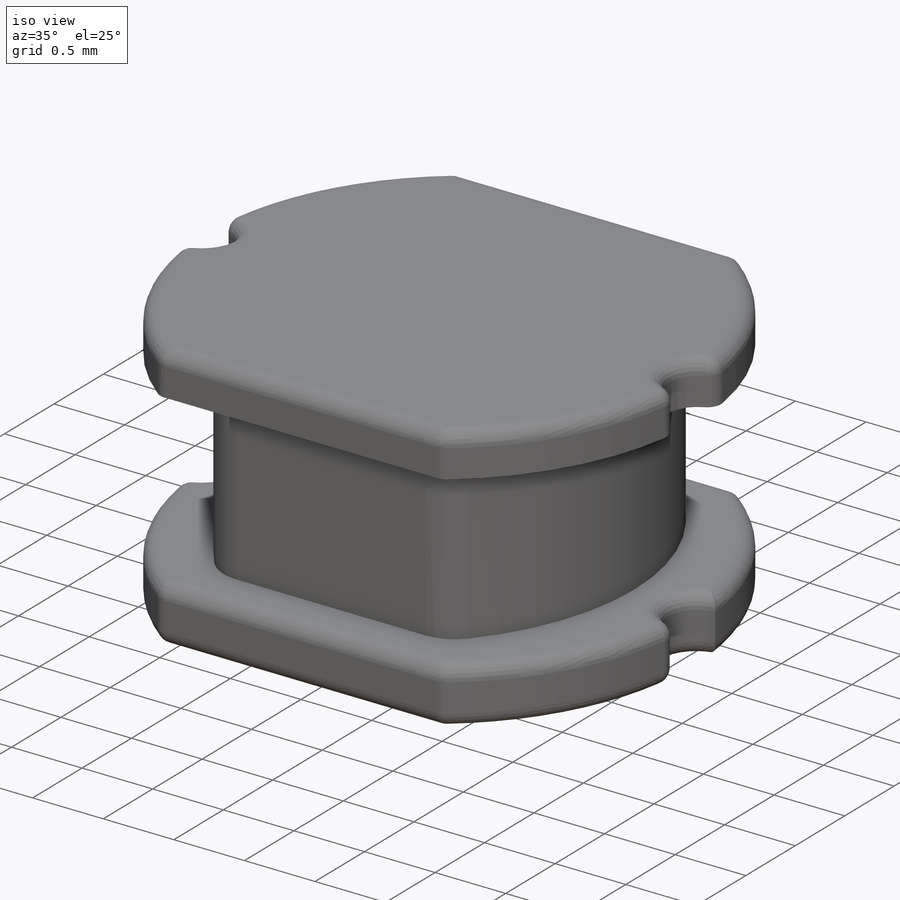
[diagram: iso view]
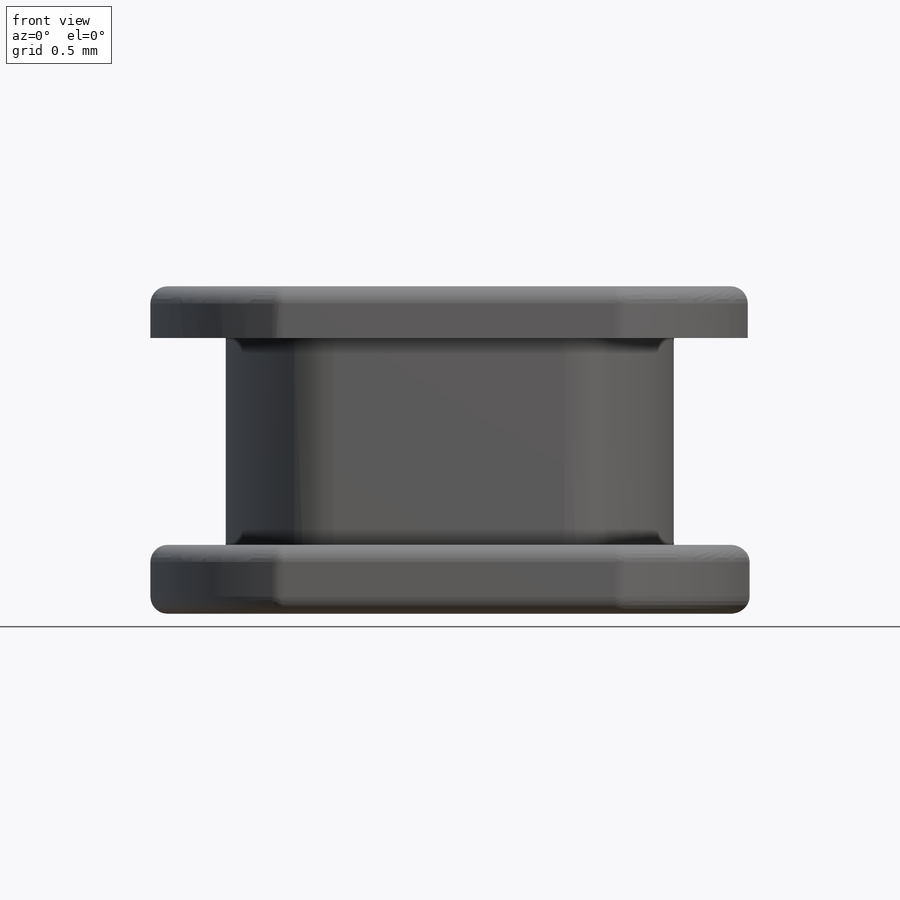
[diagram: front view]
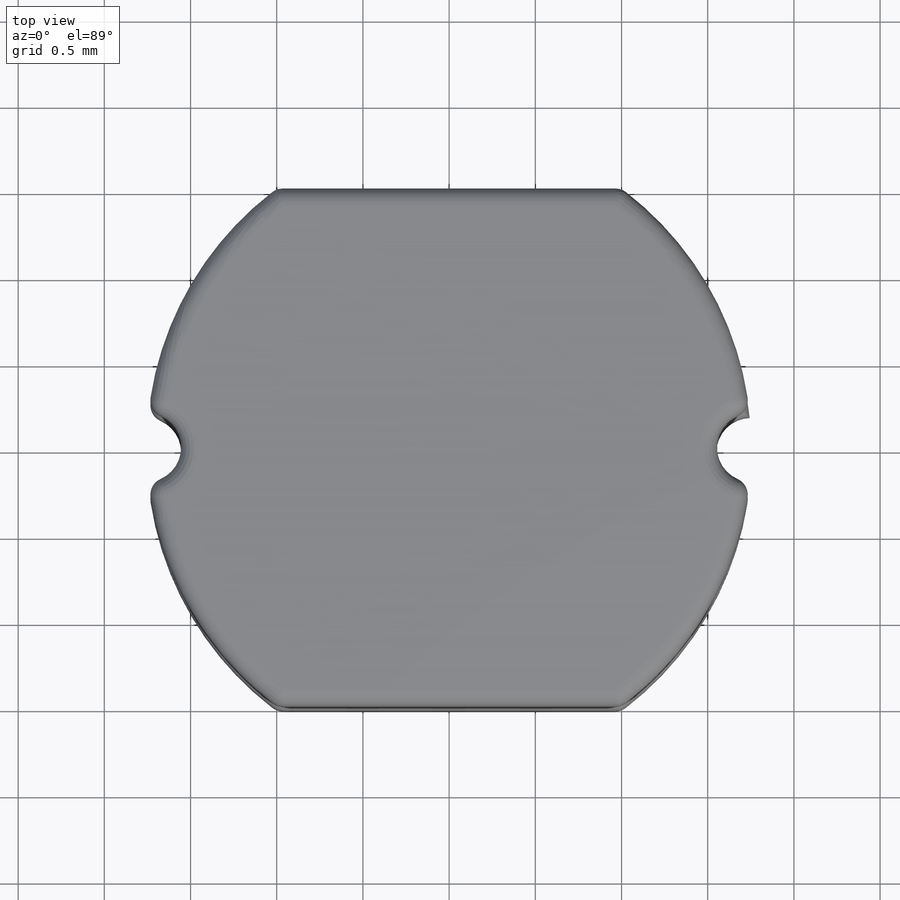
[diagram: top view]
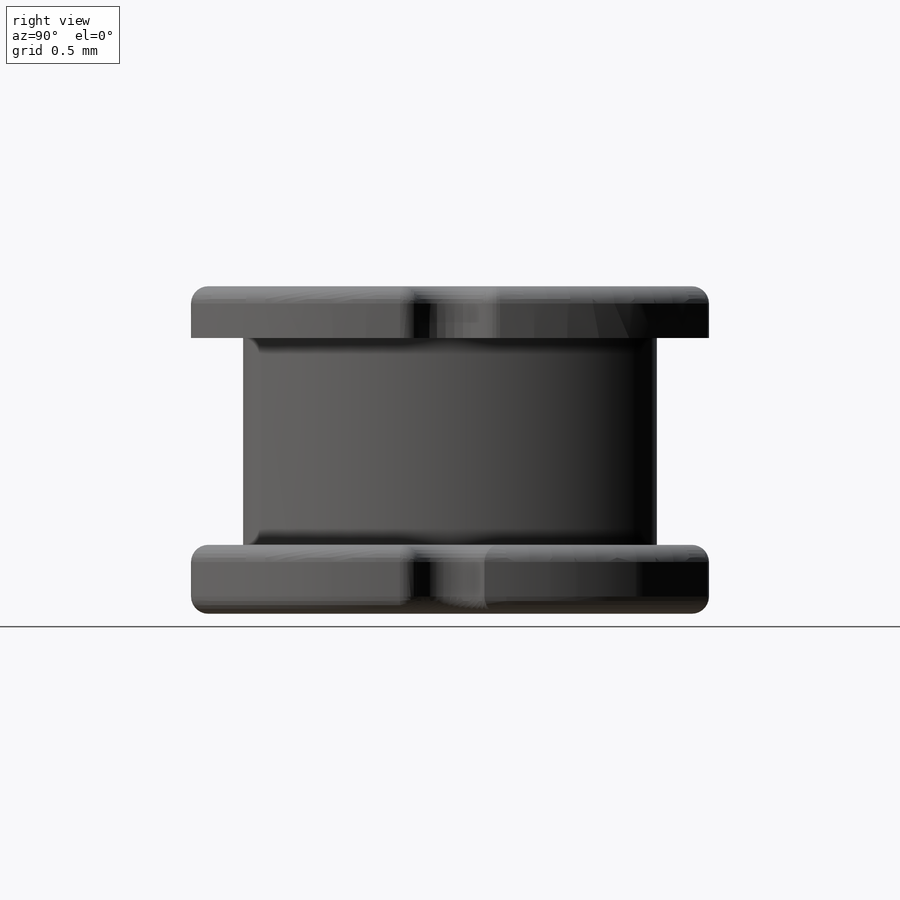
[diagram: right view]
SOLIDWORKS PART (.sldprt)
format: sldprt  version: not decoded by parser v0  size: 469,504 bytes
history: native  units: mm
features: fillet x5, sketch x4, plane x3, extrude x3, material x1 (+9 scaffold rows collapsed)
feature tree (25):
  scaffold x9  (default folders/planes/origin — collapsed)
  material  "材质 <未指定>"
  plane  "前视基准面"
  plane  "上视基准面"
  plane  "右视基准面"
  sketch  "草图1"  dims[D1=~3.004631mm]
  extrude  "凸台-拉伸1"  Depth=0.4mm
  sketch  "草图2"  dims[D1=2.4mm]
  extrude  "凸台-拉伸2"  Depth=1.2mm
  sketch  "草图3"
  extrude  "凸台-拉伸3"  Depth=0.3mm
  fillet  "圆角1"  Radius=0.1mm
  fillet  "圆角2"  Radius=0.1mm
  fillet  "圆角3"  Radius=0.1mm
  fillet  "圆角4"  Radius=0.3mm
  fillet  "圆角5"  Radius=0.1mm
  sketch  "草图4"
decode coverage: 10 of 12 modeling features carry decoded parameters
note: ~ marks probable driven/reference dimensions
note: suppression state not decoded; provenance and decode notes live in map.json
